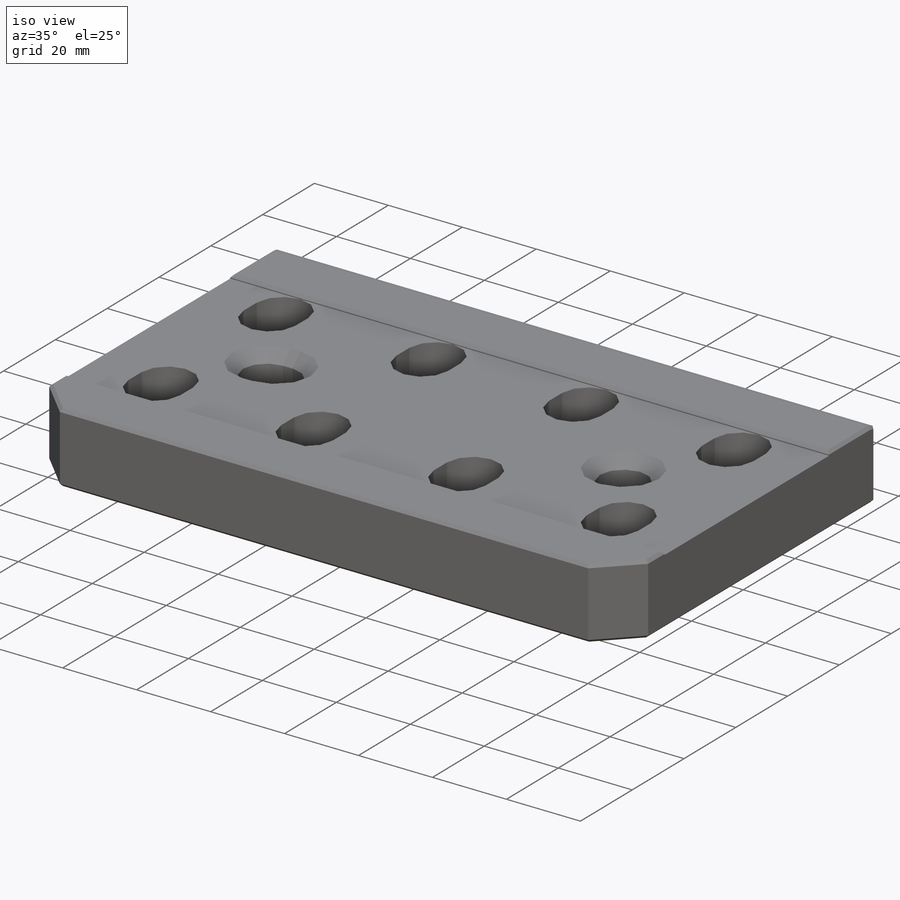
[diagram: iso view]
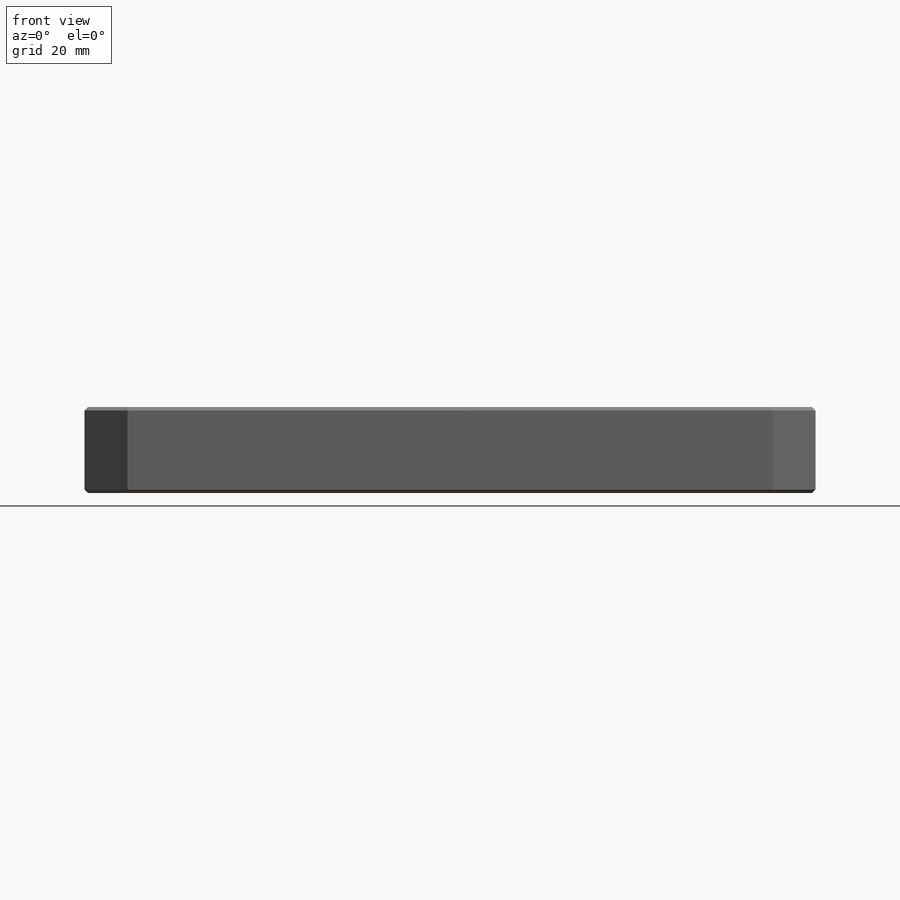
[diagram: front view]
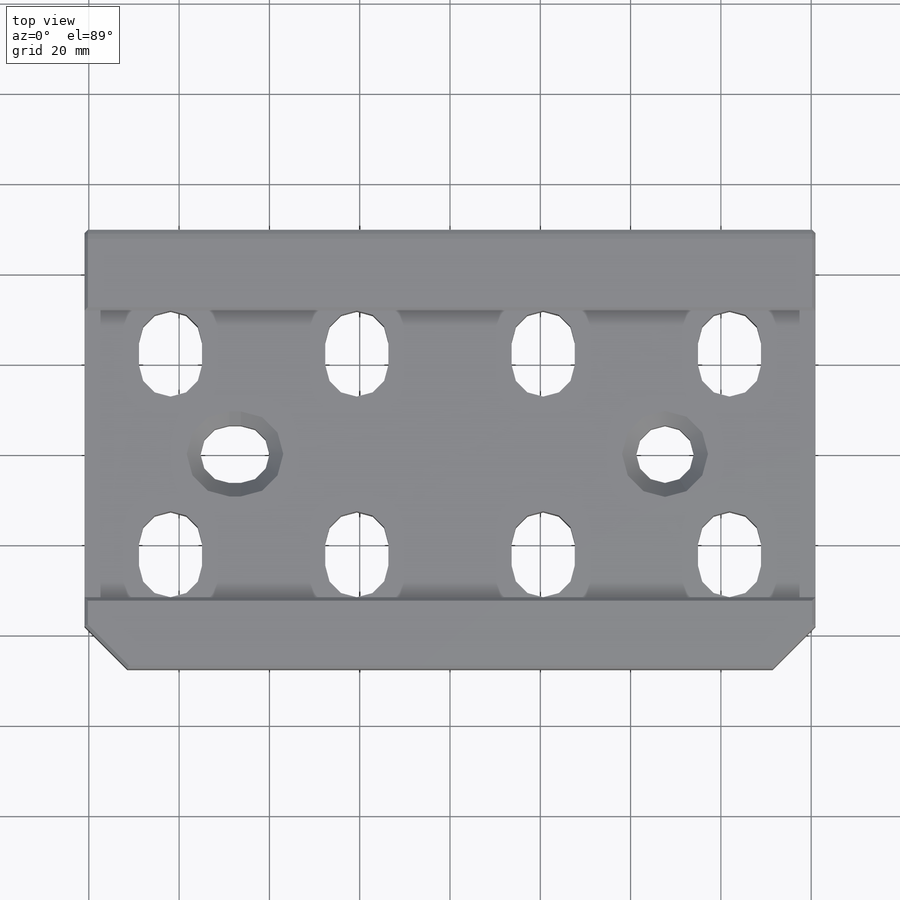
[diagram: top view]
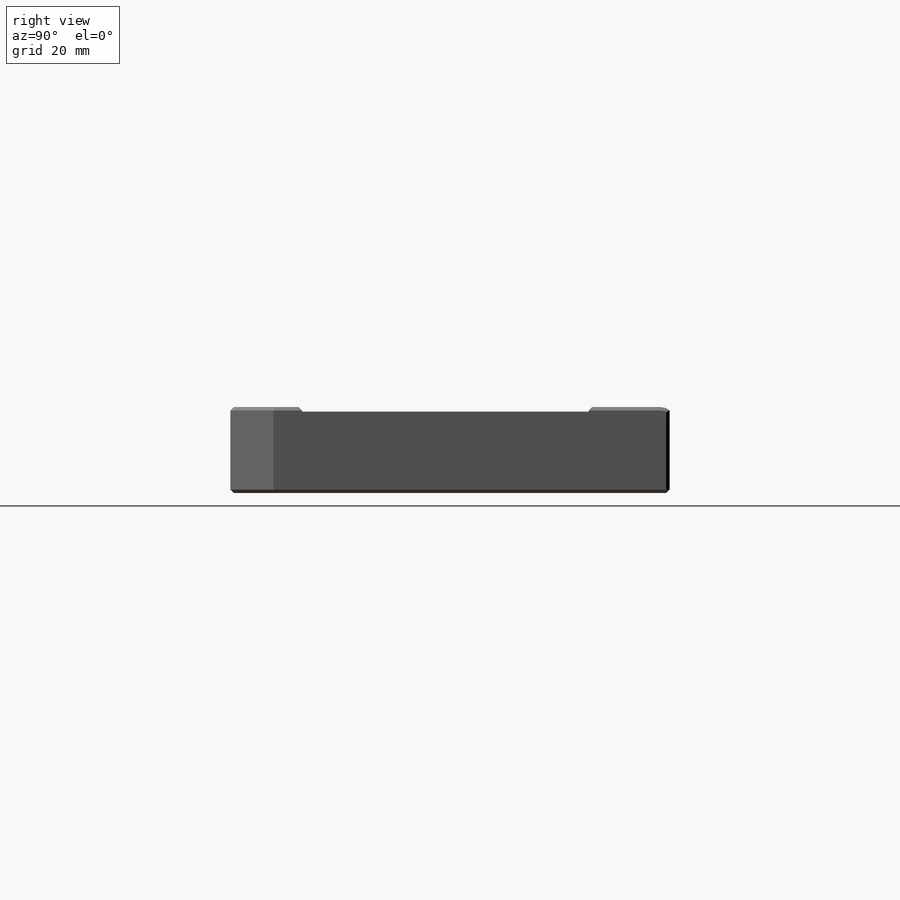
[diagram: right view]
SOLIDWORKS PART (.sldprt)
format: sldprt  version: not decoded by parser v0  size: 444,416 bytes
history: native  units: mm
features: sketch x7, chamfer x4, cut_extrude x3, extrude x2, material x1, hole x1 + 1 further entry (+13 scaffold rows collapsed)
feature tree (32):
  scaffold x13  (default folders/planes/origin — collapsed)
  material  "17-4 PH SSTL, H 1150"
  "Origin"  ID=-1
  sketch  "Sketch1"  dims[D1=19.05mm D2=95.25mm]
  extrude  "Extrude1"  Depth=161.925mm
  chamfer  "Chamfer1"  Distance=9.525mm Angle=45deg
  sketch  "Sketch6"  dims[c1.D1=15.875mm c1.D2=15.875mm c1.D3=25.4mm c2.D1=31.75mm c2.D2=31.75mm]
  cut_extrude  "Extrude2"  Depth=1.016mm
  sketch  "Sketch10"  dims[D1=0.762mm D2=2.032mm]
  extrude  "Extrude5"  Depth=161.925mm
  sketch  "Sketch16"  dims[c1.D1=13.97mm c1.D2=5.08mm c1.D3=44.45mm c1.D4=25.4mm c1.D5=41.275mm c2.D4=25.4mm]
  cut_extrude  "Extrude8"  [1 undecoded]
  chamfer  "Chamfer8"  Distance=0.762mm Angle=45deg
  hole  "1/2 (0.5) Diameter Hole2"  Diameter=12.7508mm Depth=18.034mm
  sketch  "Sketch18"  dims[D1=95.25mm]
  sketch  "Sketch17"  dims[hole-wizard template sketch: 46 standard entries collapsed; hole parameters kept: c15.Thru Hole Dia.=12.7508mm c15.Thru Hole Depth=18.034mm c15.Near C'Sink Dia.=19.05mm c15.D4=~3.666174mm c15.Near C'Sink Angle=90.0deg c15.Far C'Sink Dia.=19.05mm c15.D6=~9.919017mm c15.Far C'Sink Angle=90.0deg]
  sketch  "Sketch20"  dims[c1.D1=~6.36016mm c1.D2=~6.36016mm c2.D1=93.98mm c2.D2=2.54mm]
  cut_extrude  "Extrude9"  [1 undecoded]
  chamfer  "Chamfer9"  Distance=3.048mm Angle=45deg
  chamfer  "Chamfer6"  Distance=0.762mm Angle=45deg
decode coverage: 15 of 17 modeling features carry decoded parameters; 1 rows unclassified (native names shown)
note: ~ marks probable driven/reference dimensions
note: 2 parameter values undecoded
note: suppression state not decoded; provenance and decode notes live in map.json
